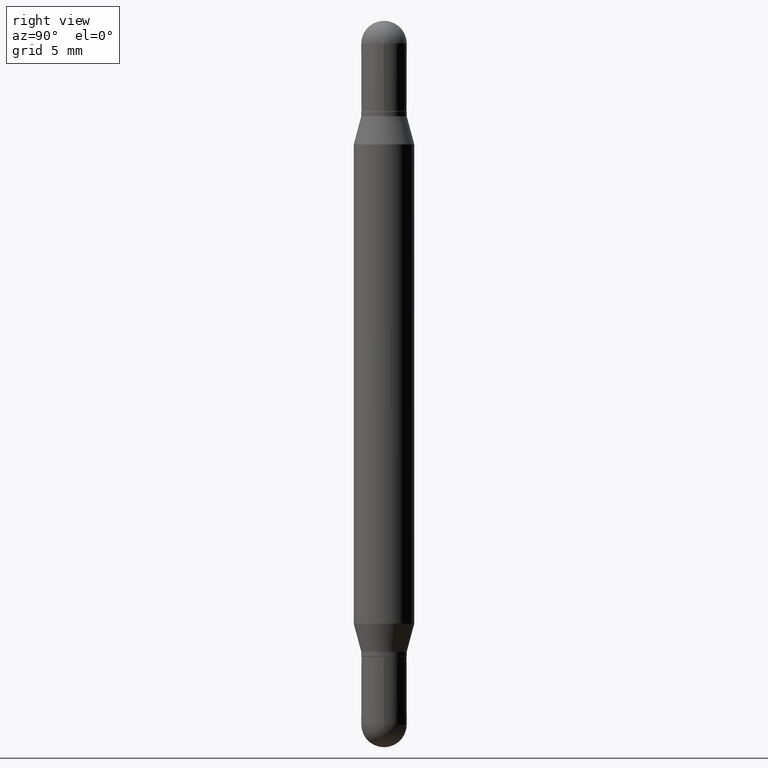
[diagram: clean part render]
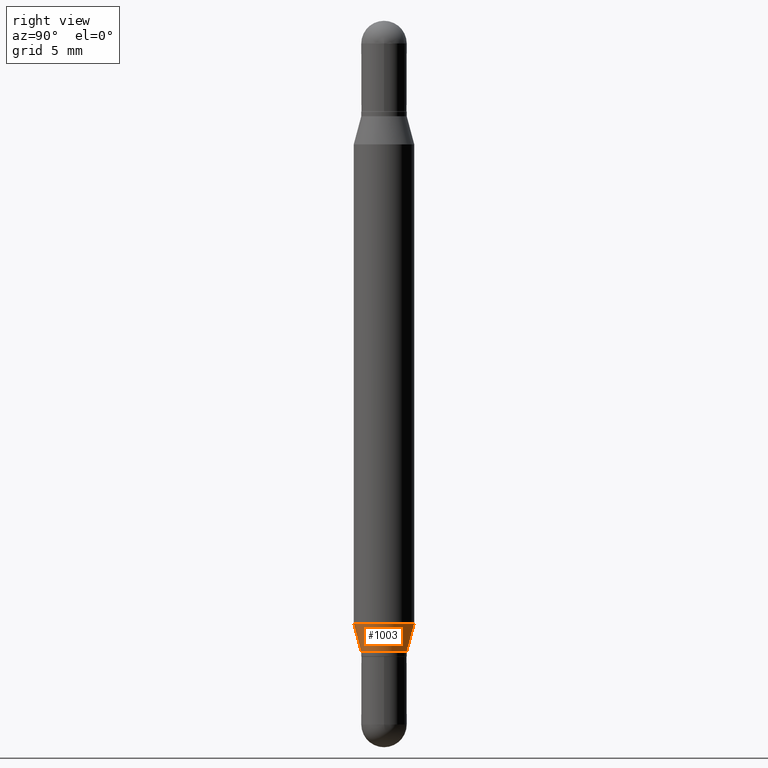
[diagram: same view with one face highlighted and labeled with its STEP entity id]
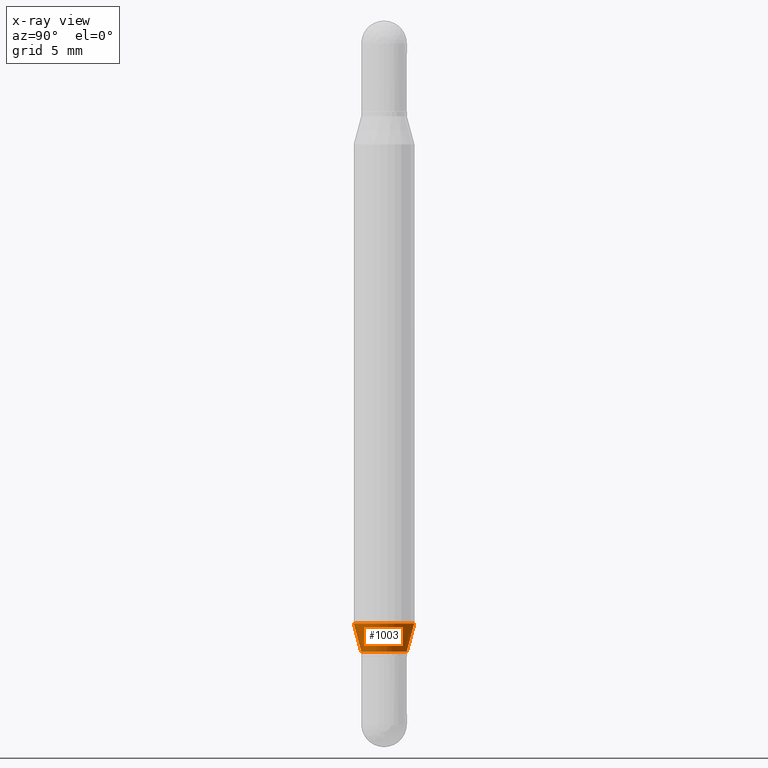
[diagram: x-ray of the same camera — body ghosted, the highlighted face saturated]
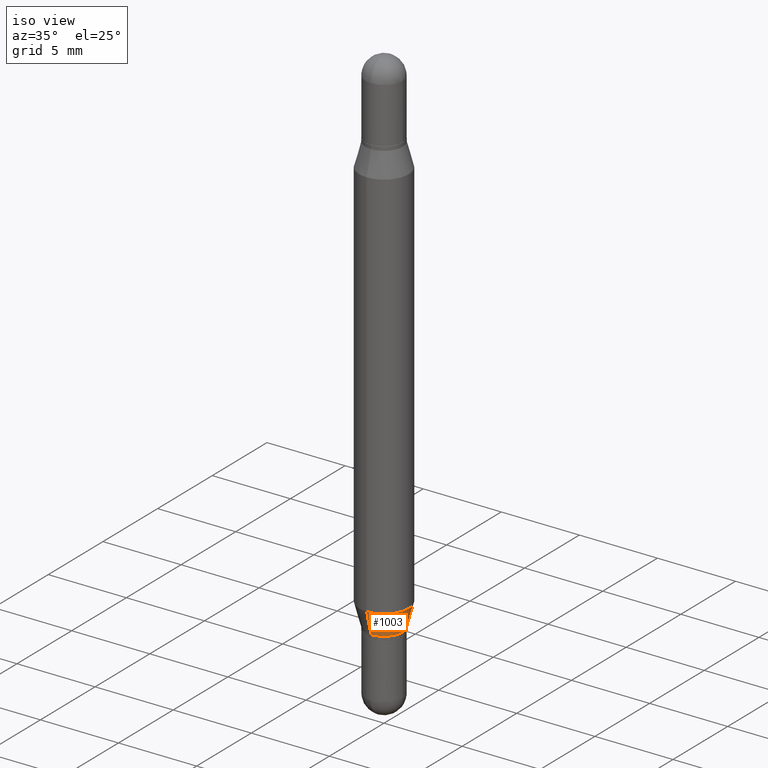
[diagram: same view with one face highlighted and labeled with its STEP entity id]
A machine part, right view. The second image highlights one B-rep face of the part: STEP entity #1003.
The next image is the same camera in x-ray: the body ghosted, the highlighted face saturated — about 0% of this face is hidden behind the body in this view.
A second angle (iso view) of the same face is appended — the face is thin or edge-on in the first view.
In plain terms, the highlighted conical surface has half-angle 15 deg.
Its self-contained STEP definition (entity closure, byte-faithful):
#3 = DIRECTION ( 'NONE',  ( -6.982962677686265922E-15, -1.000000000000000000, 4.370956789862821150E-15 ) ) ;
#45 = FACE_OUTER_BOUND ( 'NONE', #154, .T. ) ;
#46 = EDGE_CURVE ( 'NONE', #335, #326, #307, .T. ) ;
#74 = ORIENTED_EDGE ( 'NONE', *, *, #46, .T. ) ;
#154 = EDGE_LOOP ( 'NONE', ( #74, #764, #507, #308 ) ) ;
#162 = VERTEX_POINT ( 'NONE', #530 ) ;
#174 = CARTESIAN_POINT ( 'NONE',  ( 3.044285004926114619E-29, -4.345819239403255342E-15, -1.244780007401924626 ) ) ;
#206 = CARTESIAN_POINT ( 'NONE',  ( -3.275009495834514884E-16, -0.04690000000000419528, -1.302999999999999936 ) ) ;
#212 = DIRECTION ( 'NONE',  ( -6.982962677686265133E-15, -1.000000000000000000, 5.824835807386533174E-15 ) ) ;
#283 = CARTESIAN_POINT ( 'NONE',  ( 3.332445430715164513E-16, 0.04689999999999509145, -1.303000000000000602 ) ) ;
#293 = AXIS2_PLACEMENT_3D ( 'NONE', #174, #934, #3 ) ;
#307 = CIRCLE ( 'NONE', #451, 0.04689999999999964336 ) ;
#308 = ORIENTED_EDGE ( 'NONE', *, *, #365, .F. ) ;
#326 = VERTEX_POINT ( 'NONE', #283 ) ;
#335 = VERTEX_POINT ( 'NONE', #467 ) ;
#365 = EDGE_CURVE ( 'NONE', #335, #843, #732, .T. ) ;
#368 = CIRCLE ( 'NONE', #293, 0.06250000000000000000 ) ;
#372 = CARTESIAN_POINT ( 'NONE',  ( -4.364351673553611504E-16, -0.06250000000000434375, -1.244780007401924404 ) ) ;
#391 = DIRECTION ( 'NONE',  ( -6.982962677686265133E-15, -1.000000000000000000, 5.824835807386533174E-15 ) ) ;
#433 = CARTESIAN_POINT ( 'NONE',  ( 3.332445430715162048E-16, 0.04689999999999509145, -1.303000000000000602 ) ) ;
#451 = AXIS2_PLACEMENT_3D ( 'NONE', #641, #820, #212 ) ;
#467 = CARTESIAN_POINT ( 'NONE',  ( -3.275009495834514884E-16, -0.04690000000000419528, -1.302999999999999936 ) ) ;
#491 = VECTOR ( 'NONE', #887, 39.37007874015748854 ) ;
#507 = ORIENTED_EDGE ( 'NONE', *, *, #1103, .F. ) ;
#508 = DIRECTION ( 'NONE',  ( 1.839019923739598738E-15, 0.2588190451025247363, 0.9659258262890673130 ) ) ;
#530 = CARTESIAN_POINT ( 'NONE',  ( 4.287811248607390144E-16, 0.06249999999999565625, -1.244780007401924848 ) ) ;
#542 = AXIS2_PLACEMENT_3D ( 'NONE', #754, #827, #391 ) ;
#641 = CARTESIAN_POINT ( 'NONE',  ( 3.186670205041240929E-29, -4.549078901709943927E-15, -1.303000000000000380 ) ) ;
#732 = LINE ( 'NONE', #206, #491 ) ;
#754 = CARTESIAN_POINT ( 'NONE',  ( 3.186670205041240929E-29, -4.549078901709943927E-15, -1.303000000000000380 ) ) ;
#764 = ORIENTED_EDGE ( 'NONE', *, *, #1100, .T. ) ;
#819 = VECTOR ( 'NONE', #508, 39.37007874015748854 ) ;
#820 = DIRECTION ( 'NONE',  ( -2.445640986217375071E-29, 3.491234767237101121E-15, 1.000000000000000000 ) ) ;
#827 = DIRECTION ( 'NONE',  ( -2.445640986217375071E-29, 3.491234767237101121E-15, 1.000000000000000000 ) ) ;
#843 = VERTEX_POINT ( 'NONE', #372 ) ;
#887 = DIRECTION ( 'NONE',  ( -1.807323732225328562E-15, -0.2588190451025179639, 0.9659258262890690894 ) ) ;
#934 = DIRECTION ( 'NONE',  ( -2.445640986217375071E-29, 3.491234767237101121E-15, 1.000000000000000000 ) ) ;
#944 = LINE ( 'NONE', #433, #819 ) ;
#1003 = ADVANCED_FACE ( 'NONE', ( #45 ), #1036, .T. ) ;
#1036 = CONICAL_SURFACE ( 'NONE', #542, 0.04689999999999964336, 0.2617993877991500740 ) ;
#1100 = EDGE_CURVE ( 'NONE', #326, #162, #944, .T. ) ;
#1103 = EDGE_CURVE ( 'NONE', #843, #162, #368, .T. ) ;